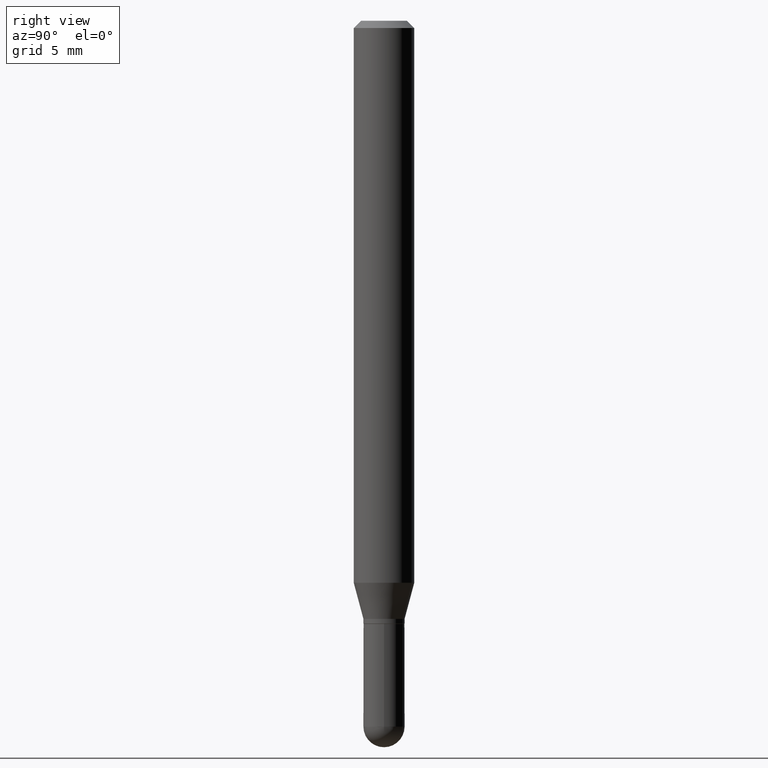
[diagram: clean part render]
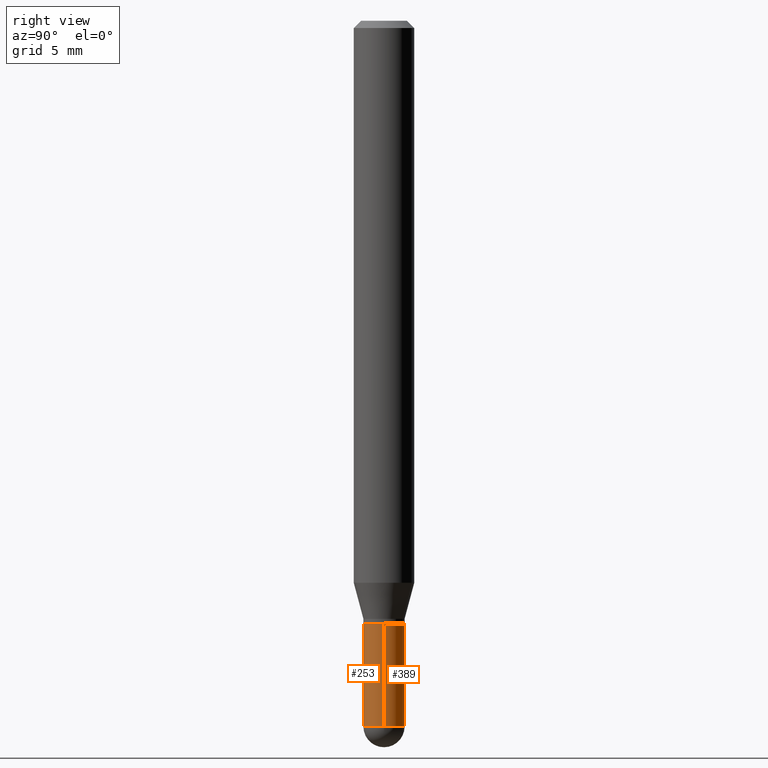
[diagram: same view with one multi-face feature highlighted, each face labeled with its STEP entity id]
A machine part, right view. The highlighted faces form ONE feature: a constant-radius fillet chain: 2 tangent blend faces with common blend radius 1.0795 mm. The faces share edges in the B-rep.
Their STEP definitions:
[1] entity #253 (Cylinder):
#10 = LINE ( 'NONE', #330, #28 ) ;
#28 = VECTOR ( 'NONE', #327, 39.37007874015748143 ) ;
#39 = VERTEX_POINT ( 'NONE', #406 ) ;
#55 = DIRECTION ( 'NONE',  ( 1.000000000000000000, -6.982962677686266711E-15, 4.876176775795935793E-29 ) ) ;
#59 = DIRECTION ( 'NONE',  ( -2.445468806185136597E-29, 3.491481338843145583E-15, 1.000000000000000000 ) ) ;
#64 = CARTESIAN_POINT ( 'NONE',  ( 0.000000000000000000, 0.000000000000000000, 0.000000000000000000 ) ) ;
#76 = CIRCLE ( 'NONE', #341, 0.04250000000000000999 ) ;
#84 = LINE ( 'NONE', #492, #219 ) ;
#86 = CARTESIAN_POINT ( 'NONE',  ( 0.04250000000000000999, -5.014640072913468189E-15, -1.457500000000000240 ) ) ;
#93 = CIRCLE ( 'NONE', #102, 0.04250000000000000999 ) ;
#98 = ORIENTED_EDGE ( 'NONE', *, *, #405, .F. ) ;
#99 = FACE_OUTER_BOUND ( 'NONE', #153, .T. ) ;
#102 = AXIS2_PLACEMENT_3D ( 'NONE', #106, #59, #264 ) ;
#106 = CARTESIAN_POINT ( 'NONE',  ( 3.564270785014837509E-29, -5.088834051363884851E-15, -1.457500000000000240 ) ) ;
#132 = CARTESIAN_POINT ( 'NONE',  ( 0.04249999999999999611, -4.643670180661383298E-15, -1.245000000000000329 ) ) ;
#141 = CIRCLE ( 'NONE', #391, 0.04249999999999999611 ) ;
#153 = EDGE_LOOP ( 'NONE', ( #98, #271, #510, #417, #311 ) ) ;
#161 = VERTEX_POINT ( 'NONE', #86 ) ;
#178 = CARTESIAN_POINT ( 'NONE',  ( -0.04249999999999999611, -4.415883496413758296E-15, -1.245000000000000329 ) ) ;
#219 = VECTOR ( 'NONE', #322, 39.37007874015748143 ) ;
#227 = CARTESIAN_POINT ( 'NONE',  ( 3.564270785014837509E-29, -5.088834051363884851E-15, -1.457500000000000240 ) ) ;
#235 = VERTEX_POINT ( 'NONE', #178 ) ;
#253 = ADVANCED_FACE ( 'NONE', ( #99 ), #411, .T. ) ;
#264 = DIRECTION ( 'NONE',  ( 1.000000000000000000, -6.982962677686273810E-15, 0.000000000000000000 ) ) ;
#271 = ORIENTED_EDGE ( 'NONE', *, *, #315, .T. ) ;
#281 = DIRECTION ( 'NONE',  ( 1.000000000000000000, -6.982962677686265133E-15, 0.000000000000000000 ) ) ;
#288 = DIRECTION ( 'NONE',  ( -2.445468806185136597E-29, 3.491481338843145583E-15, 1.000000000000000000 ) ) ;
#289 = AXIS2_PLACEMENT_3D ( 'NONE', #64, #295, #55 ) ;
#295 = DIRECTION ( 'NONE',  ( -2.445468806185136597E-29, 3.491481338843145583E-15, 1.000000000000000000 ) ) ;
#311 = ORIENTED_EDGE ( 'NONE', *, *, #396, .F. ) ;
#315 = EDGE_CURVE ( 'NONE', #39, #435, #76, .T. ) ;
#321 = EDGE_CURVE ( 'NONE', #435, #161, #93, .T. ) ;
#322 = DIRECTION ( 'NONE',  ( -2.445468806185136877E-29, 3.491481338843145188E-15, 1.000000000000000000 ) ) ;
#327 = DIRECTION ( 'NONE',  ( -2.445468806185136877E-29, 3.491481338843145188E-15, 1.000000000000000000 ) ) ;
#330 = CARTESIAN_POINT ( 'NONE',  ( -0.04250000000000000999, 3.019806626980426500E-16, -2.090547413358335560E-30 ) ) ;
#341 = AXIS2_PLACEMENT_3D ( 'NONE', #227, #501, #461 ) ;
#362 = CARTESIAN_POINT ( 'NONE',  ( -3.019806626980067075E-16, -0.04250000000000507538, -1.457500000000000018 ) ) ;
#390 = VERTEX_POINT ( 'NONE', #132 ) ;
#391 = AXIS2_PLACEMENT_3D ( 'NONE', #404, #288, #281 ) ;
#396 = EDGE_CURVE ( 'NONE', #235, #390, #141, .T. ) ;
#404 = CARTESIAN_POINT ( 'NONE',  ( 3.044608663700495534E-29, -4.346894266859716647E-15, -1.245000000000000329 ) ) ;
#405 = EDGE_CURVE ( 'NONE', #39, #235, #10, .T. ) ;
#406 = CARTESIAN_POINT ( 'NONE',  ( -0.04250000000000000999, -4.415883496413759874E-15, -1.457500000000000240 ) ) ;
#411 = CYLINDRICAL_SURFACE ( 'NONE', #289, 0.04250000000000000999 ) ;
#417 = ORIENTED_EDGE ( 'NONE', *, *, #447, .T. ) ;
#435 = VERTEX_POINT ( 'NONE', #362 ) ;
#447 = EDGE_CURVE ( 'NONE', #161, #390, #84, .T. ) ;
#461 = DIRECTION ( 'NONE',  ( 1.000000000000000000, -6.982962677686273810E-15, 0.000000000000000000 ) ) ;
#492 = CARTESIAN_POINT ( 'NONE',  ( 0.04250000000000000999, -2.967759138016664042E-16, 2.072375129713273202E-30 ) ) ;
#501 = DIRECTION ( 'NONE',  ( -2.445468806185136597E-29, 3.491481338843145583E-15, 1.000000000000000000 ) ) ;
#510 = ORIENTED_EDGE ( 'NONE', *, *, #321, .T. ) ;
[2] entity #389 (Cylinder):
#10 = LINE ( 'NONE', #330, #28 ) ;
#12 = DIRECTION ( 'NONE',  ( 1.000000000000000000, -6.982962677686266711E-15, 4.876176775795935793E-29 ) ) ;
#15 = CARTESIAN_POINT ( 'NONE',  ( 3.564270785014837509E-29, -5.088834051363884851E-15, -1.457500000000000240 ) ) ;
#28 = VECTOR ( 'NONE', #327, 39.37007874015748143 ) ;
#39 = VERTEX_POINT ( 'NONE', #406 ) ;
#70 = CARTESIAN_POINT ( 'NONE',  ( 3.564270785014837509E-29, -5.088834051363884851E-15, -1.457500000000000240 ) ) ;
#72 = ORIENTED_EDGE ( 'NONE', *, *, #373, .T. ) ;
#84 = LINE ( 'NONE', #492, #219 ) ;
#86 = CARTESIAN_POINT ( 'NONE',  ( 0.04250000000000000999, -5.014640072913468189E-15, -1.457500000000000240 ) ) ;
#88 = DIRECTION ( 'NONE',  ( 1.000000000000000000, -6.982962677686265133E-15, 0.000000000000000000 ) ) ;
#92 = DIRECTION ( 'NONE',  ( -2.445468806185136597E-29, 3.491481338843145583E-15, 1.000000000000000000 ) ) ;
#111 = CIRCLE ( 'NONE', #439, 0.04250000000000000999 ) ;
#132 = CARTESIAN_POINT ( 'NONE',  ( 0.04249999999999999611, -4.643670180661383298E-15, -1.245000000000000329 ) ) ;
#159 = AXIS2_PLACEMENT_3D ( 'NONE', #486, #480, #88 ) ;
#161 = VERTEX_POINT ( 'NONE', #86 ) ;
#174 = VERTEX_POINT ( 'NONE', #401 ) ;
#178 = CARTESIAN_POINT ( 'NONE',  ( -0.04249999999999999611, -4.415883496413758296E-15, -1.245000000000000329 ) ) ;
#219 = VECTOR ( 'NONE', #322, 39.37007874015748143 ) ;
#235 = VERTEX_POINT ( 'NONE', #178 ) ;
#260 = AXIS2_PLACEMENT_3D ( 'NONE', #371, #365, #12 ) ;
#266 = ORIENTED_EDGE ( 'NONE', *, *, #416, .T. ) ;
#304 = FACE_OUTER_BOUND ( 'NONE', #351, .T. ) ;
#319 = ORIENTED_EDGE ( 'NONE', *, *, #509, .F. ) ;
#322 = DIRECTION ( 'NONE',  ( -2.445468806185136877E-29, 3.491481338843145188E-15, 1.000000000000000000 ) ) ;
#327 = DIRECTION ( 'NONE',  ( -2.445468806185136877E-29, 3.491481338843145188E-15, 1.000000000000000000 ) ) ;
#330 = CARTESIAN_POINT ( 'NONE',  ( -0.04250000000000000999, 3.019806626980426500E-16, -2.090547413358335560E-30 ) ) ;
#351 = EDGE_LOOP ( 'NONE', ( #266, #392, #319, #370, #72 ) ) ;
#365 = DIRECTION ( 'NONE',  ( -2.445468806185136597E-29, 3.491481338843145583E-15, 1.000000000000000000 ) ) ;
#370 = ORIENTED_EDGE ( 'NONE', *, *, #447, .F. ) ;
#371 = CARTESIAN_POINT ( 'NONE',  ( 0.000000000000000000, 0.000000000000000000, 0.000000000000000000 ) ) ;
#373 = EDGE_CURVE ( 'NONE', #161, #174, #496, .T. ) ;
#386 = CIRCLE ( 'NONE', #159, 0.04249999999999999611 ) ;
#387 = DIRECTION ( 'NONE',  ( 1.000000000000000000, -6.982962677686273810E-15, 0.000000000000000000 ) ) ;
#389 = ADVANCED_FACE ( 'NONE', ( #304 ), #505, .T. ) ;
#390 = VERTEX_POINT ( 'NONE', #132 ) ;
#392 = ORIENTED_EDGE ( 'NONE', *, *, #405, .T. ) ;
#401 = CARTESIAN_POINT ( 'NONE',  ( 2.967759138017017551E-16, 0.04249999999999488215, -1.457500000000000462 ) ) ;
#405 = EDGE_CURVE ( 'NONE', #39, #235, #10, .T. ) ;
#406 = CARTESIAN_POINT ( 'NONE',  ( -0.04250000000000000999, -4.415883496413759874E-15, -1.457500000000000240 ) ) ;
#407 = DIRECTION ( 'NONE',  ( 1.000000000000000000, -6.982962677686273810E-15, 0.000000000000000000 ) ) ;
#416 = EDGE_CURVE ( 'NONE', #174, #39, #111, .T. ) ;
#425 = AXIS2_PLACEMENT_3D ( 'NONE', #70, #426, #387 ) ;
#426 = DIRECTION ( 'NONE',  ( -2.445468806185136597E-29, 3.491481338843145583E-15, 1.000000000000000000 ) ) ;
#439 = AXIS2_PLACEMENT_3D ( 'NONE', #15, #92, #407 ) ;
#447 = EDGE_CURVE ( 'NONE', #161, #390, #84, .T. ) ;
#480 = DIRECTION ( 'NONE',  ( -2.445468806185136597E-29, 3.491481338843145583E-15, 1.000000000000000000 ) ) ;
#486 = CARTESIAN_POINT ( 'NONE',  ( 3.044608663700495534E-29, -4.346894266859716647E-15, -1.245000000000000329 ) ) ;
#492 = CARTESIAN_POINT ( 'NONE',  ( 0.04250000000000000999, -2.967759138016664042E-16, 2.072375129713273202E-30 ) ) ;
#496 = CIRCLE ( 'NONE', #425, 0.04250000000000000999 ) ;
#505 = CYLINDRICAL_SURFACE ( 'NONE', #260, 0.04250000000000000999 ) ;
#509 = EDGE_CURVE ( 'NONE', #390, #235, #386, .T. ) ;